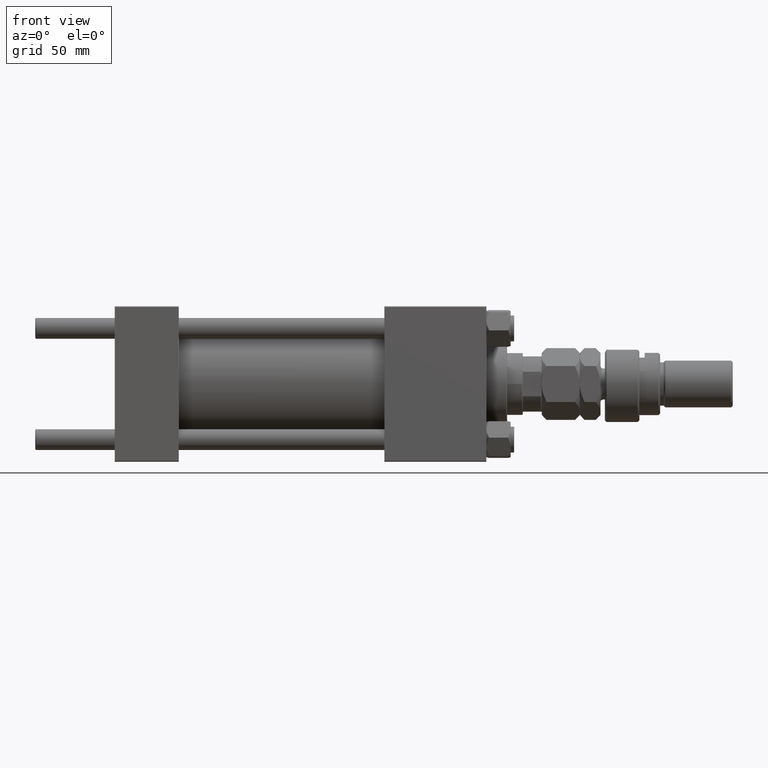
[diagram: clean part render]
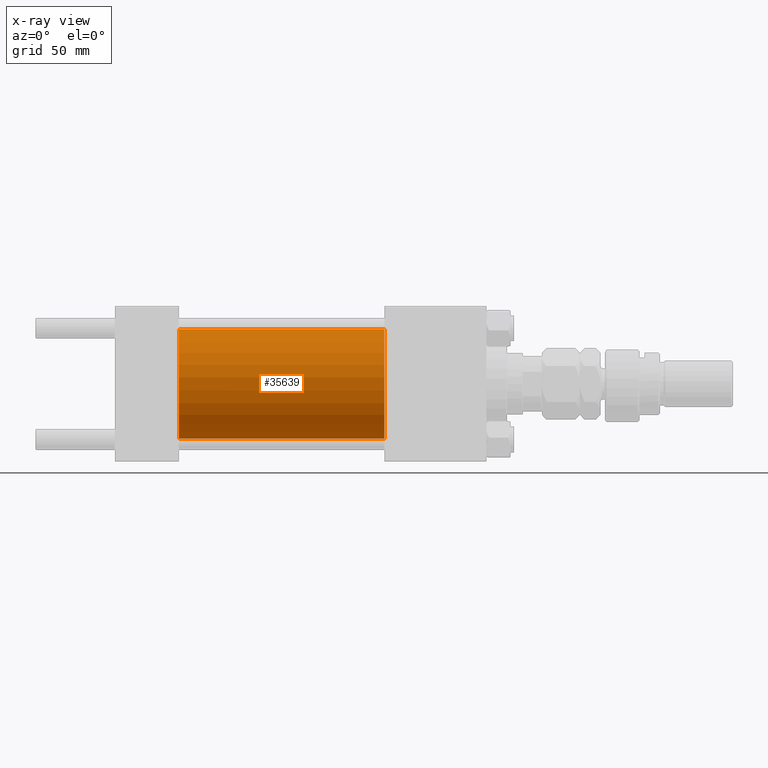
[diagram: x-ray — body ghosted, one internal face saturated and labeled with its STEP entity id]
A machine part, front view, then the same camera in x-ray: the body is ghosted and one INTERNAL B-rep face — a face not visible from any outside direction — is saturated and labeled: STEP entity #35639.
In plain terms, the highlighted cylindrical surface (partial cylindrical patch) has radius 31.5 mm, axis along (-1, -0, -0).
Its self-contained STEP definition (entity closure, byte-faithful):
#2249 = CARTESIAN_POINT ( 'NONE',  ( 156.0000000000000000, 3.857637417314162689E-15, -31.50000000000000000 ) ) ;
#2923 = VERTEX_POINT ( 'NONE', #13904 ) ;
#3785 = DIRECTION ( 'NONE',  ( 0.000000000000000000, 0.000000000000000000, -1.000000000000000000 ) ) ;
#3975 = EDGE_LOOP ( 'NONE', ( #45059, #23471, #18022, #50450 ) ) ;
#6507 = LINE ( 'NONE', #2249, #33711 ) ;
#7834 = DIRECTION ( 'NONE',  ( -1.000000000000000000, -0.000000000000000000, -0.000000000000000000 ) ) ;
#10760 = CARTESIAN_POINT ( 'NONE',  ( 156.0000000000000000, 3.857637417314162689E-15, -31.50000000000000000 ) ) ;
#11096 = AXIS2_PLACEMENT_3D ( 'NONE', #16023, #39526, #15754 ) ;
#11280 = VERTEX_POINT ( 'NONE', #19747 ) ;
#13904 = CARTESIAN_POINT ( 'NONE',  ( 37.00000000000000000, 3.857637417314162689E-15, -31.50000000000000000 ) ) ;
#14074 = VERTEX_POINT ( 'NONE', #10760 ) ;
#14094 = EDGE_CURVE ( 'NONE', #14074, #2923, #6507, .T. ) ;
#15754 = DIRECTION ( 'NONE',  ( 0.000000000000000000, 0.000000000000000000, -1.000000000000000000 ) ) ;
#16023 = CARTESIAN_POINT ( 'NONE',  ( 37.00000000000000000, 0.000000000000000000, 0.000000000000000000 ) ) ;
#16971 = LINE ( 'NONE', #22041, #41410 ) ;
#18022 = ORIENTED_EDGE ( 'NONE', *, *, #48406, .F. ) ;
#18451 = CARTESIAN_POINT ( 'NONE',  ( 156.0000000000000000, 0.000000000000000000, 31.50000000000000000 ) ) ;
#19747 = CARTESIAN_POINT ( 'NONE',  ( 37.00000000000000000, 0.000000000000000000, 31.50000000000000000 ) ) ;
#19862 = CYLINDRICAL_SURFACE ( 'NONE', #25245, 31.50000000000000000 ) ;
#22041 = CARTESIAN_POINT ( 'NONE',  ( 156.0000000000000000, 0.000000000000000000, 31.50000000000000000 ) ) ;
#23471 = ORIENTED_EDGE ( 'NONE', *, *, #14094, .T. ) ;
#24126 = DIRECTION ( 'NONE',  ( 0.000000000000000000, 0.000000000000000000, 1.000000000000000000 ) ) ;
#25245 = AXIS2_PLACEMENT_3D ( 'NONE', #48726, #7834, #24126 ) ;
#27068 = DIRECTION ( 'NONE',  ( -1.000000000000000000, -0.000000000000000000, -0.000000000000000000 ) ) ;
#28205 = CIRCLE ( 'NONE', #41006, 31.50000000000000000 ) ;
#30751 = EDGE_CURVE ( 'NONE', #37452, #11280, #16971, .T. ) ;
#33545 = DIRECTION ( 'NONE',  ( -1.000000000000000000, -0.000000000000000000, -0.000000000000000000 ) ) ;
#33711 = VECTOR ( 'NONE', #27068, 1000.000000000000000 ) ;
#35639 = ADVANCED_FACE ( 'NONE', ( #48196 ), #19862, .F. ) ;
#36615 = DIRECTION ( 'NONE',  ( 1.000000000000000000, 0.000000000000000000, 0.000000000000000000 ) ) ;
#36879 = CARTESIAN_POINT ( 'NONE',  ( 156.0000000000000000, 0.000000000000000000, 0.000000000000000000 ) ) ;
#37452 = VERTEX_POINT ( 'NONE', #18451 ) ;
#39526 = DIRECTION ( 'NONE',  ( 1.000000000000000000, 0.000000000000000000, 0.000000000000000000 ) ) ;
#41006 = AXIS2_PLACEMENT_3D ( 'NONE', #36879, #36615, #3785 ) ;
#41410 = VECTOR ( 'NONE', #33545, 1000.000000000000000 ) ;
#45059 = ORIENTED_EDGE ( 'NONE', *, *, #46232, .T. ) ;
#46232 = EDGE_CURVE ( 'NONE', #37452, #14074, #28205, .T. ) ;
#48196 = FACE_OUTER_BOUND ( 'NONE', #3975, .T. ) ;
#48406 = EDGE_CURVE ( 'NONE', #11280, #2923, #52042, .T. ) ;
#48726 = CARTESIAN_POINT ( 'NONE',  ( 156.0000000000000000, 0.000000000000000000, 0.000000000000000000 ) ) ;
#50450 = ORIENTED_EDGE ( 'NONE', *, *, #30751, .F. ) ;
#52042 = CIRCLE ( 'NONE', #11096, 31.50000000000000000 ) ;